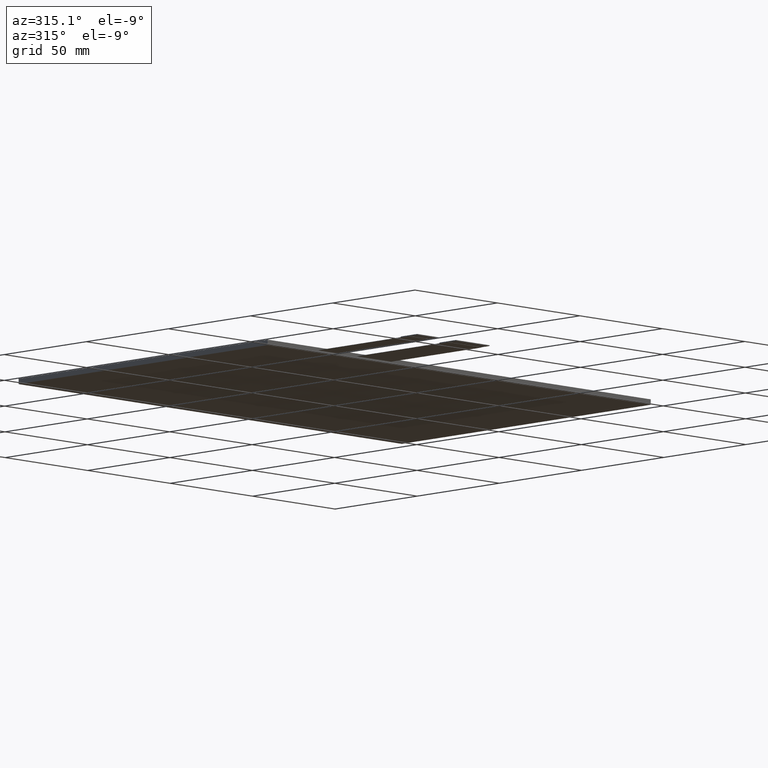
[diagram: clean part render]
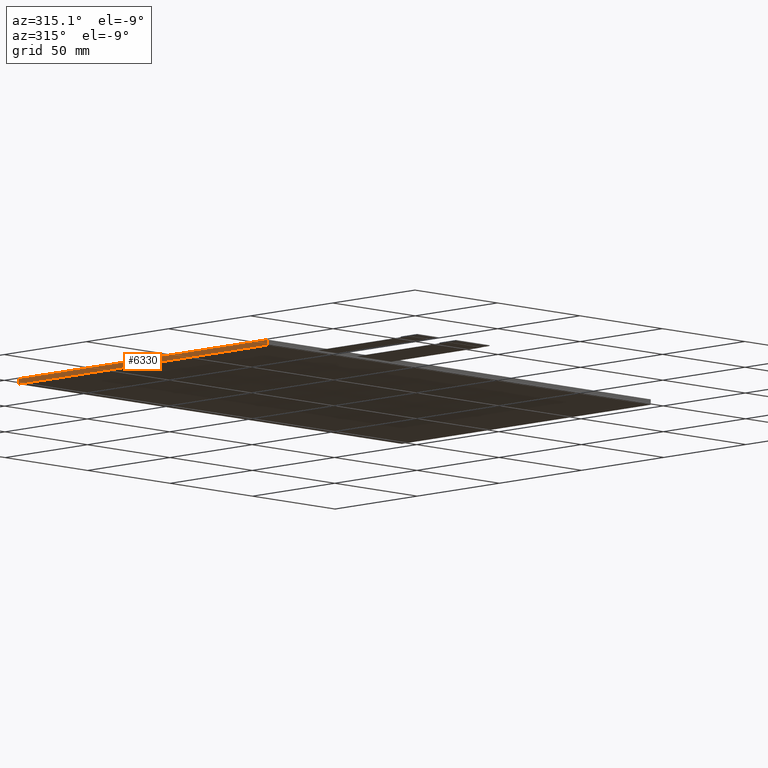
[diagram: same view with one face highlighted and labeled with its STEP entity id]
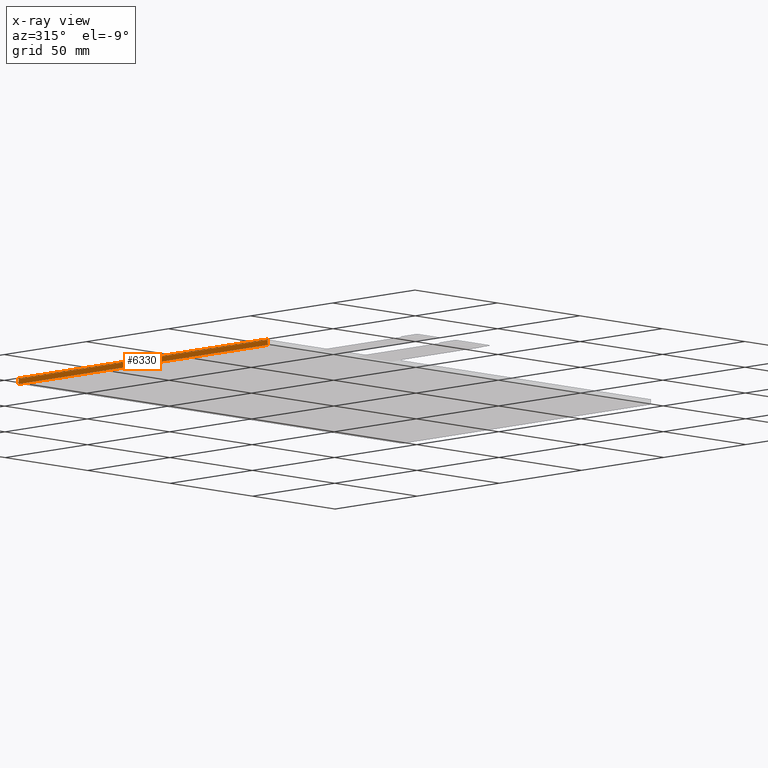
[diagram: x-ray of the same camera — body ghosted, the highlighted face saturated]
A machine part, auxiliary view. The second image highlights one B-rep face of the part: STEP entity #6330.
The next image is the same camera in x-ray: the body ghosted, the highlighted face saturated — about 0% of this face is hidden behind the body in this view.
In plain terms, the highlighted planar face has unit normal (-1, -0, 0).
Its self-contained STEP definition (entity closure, byte-faithful):
#392=PLANE('',#6660);
#694=FACE_OUTER_BOUND('',#998,.T.);
#998=EDGE_LOOP('',(#5998,#5999,#6000,#6001));
#1875=LINE('',#9929,#2755);
#1878=LINE('',#9935,#2758);
#1879=LINE('',#9937,#2759);
#1880=LINE('',#9938,#2760);
#2755=VECTOR('',#8145,10.);
#2758=VECTOR('',#8150,10.);
#2759=VECTOR('',#8151,10.);
#2760=VECTOR('',#8152,10.);
#3359=VERTEX_POINT('',#9926);
#3360=VERTEX_POINT('',#9928);
#3362=VERTEX_POINT('',#9934);
#3363=VERTEX_POINT('',#9936);
#4243=EDGE_CURVE('',#3359,#3360,#1875,.T.);
#4246=EDGE_CURVE('',#3359,#3362,#1878,.T.);
#4247=EDGE_CURVE('',#3363,#3362,#1879,.T.);
#4248=EDGE_CURVE('',#3360,#3363,#1880,.T.);
#5998=ORIENTED_EDGE('',*,*,#4243,.F.);
#5999=ORIENTED_EDGE('',*,*,#4246,.T.);
#6000=ORIENTED_EDGE('',*,*,#4247,.F.);
#6001=ORIENTED_EDGE('',*,*,#4248,.F.);
#6330=ADVANCED_FACE('',(#694),#392,.T.);
#6660=AXIS2_PLACEMENT_3D('',#9933,#8148,#8149);
#8145=DIRECTION('',(2.34502553056139E-16,-1.,0.));
#8148=DIRECTION('center_axis',(-1.,-2.34502553056139E-16,0.));
#8149=DIRECTION('ref_axis',(-2.34502553056139E-16,1.,0.));
#8150=DIRECTION('',(0.,0.,-1.));
#8151=DIRECTION('',(-2.34502553056139E-16,1.,0.));
#8152=DIRECTION('',(0.,0.,-1.));
#9926=CARTESIAN_POINT('',(-117.28,74.19,0.));
#9928=CARTESIAN_POINT('',(-117.28,-77.31,0.));
#9929=CARTESIAN_POINT('',(-117.28,74.19,0.));
#9933=CARTESIAN_POINT('Origin',(-117.28,-77.31,0.));
#9934=CARTESIAN_POINT('',(-117.28,74.19,-2.35));
#9935=CARTESIAN_POINT('',(-117.28,74.19,0.));
#9936=CARTESIAN_POINT('',(-117.28,-77.31,-2.35));
#9937=CARTESIAN_POINT('',(-117.28,74.19,-2.35));
#9938=CARTESIAN_POINT('',(-117.28,-77.31,0.));